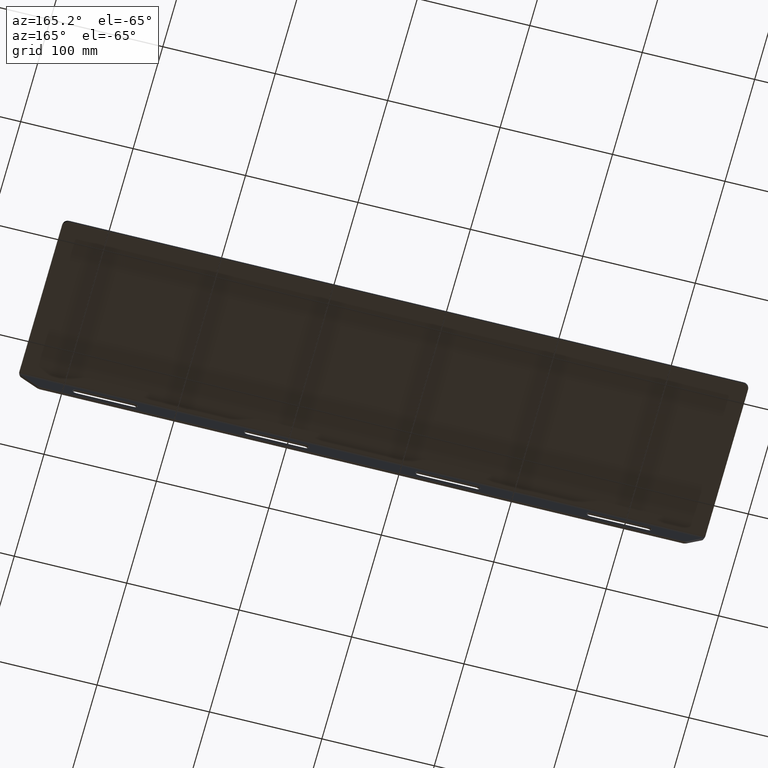
[diagram: clean part render]
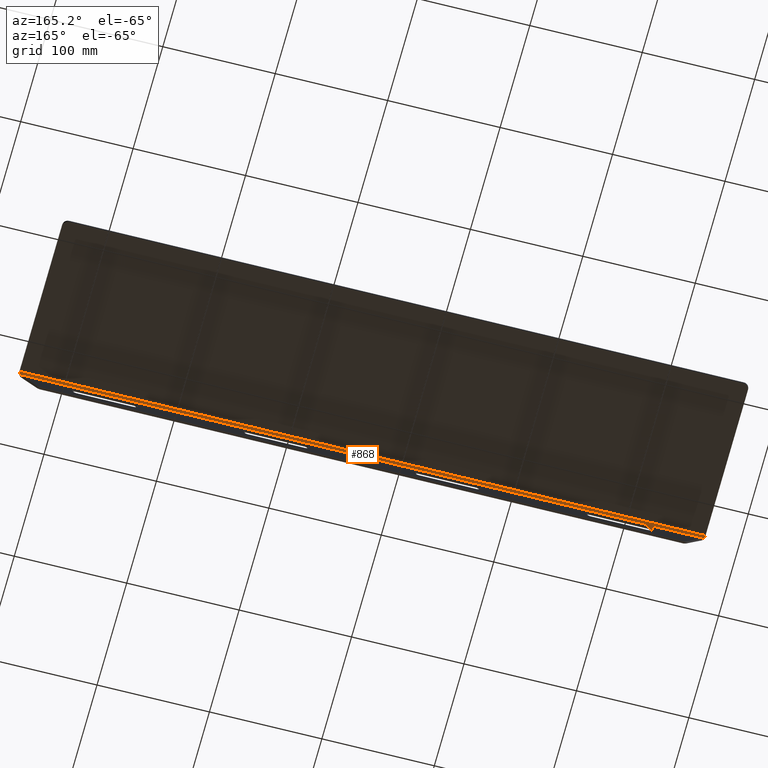
[diagram: same view with one face highlighted and labeled with its STEP entity id]
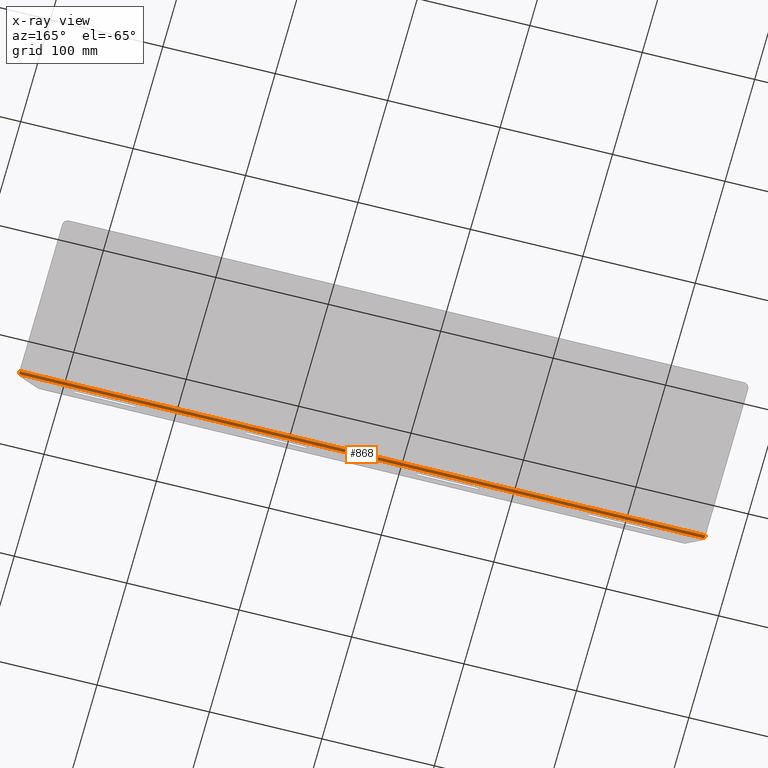
[diagram: x-ray of the same camera — body ghosted, the highlighted face saturated]
A machine part, auxiliary view. The second image highlights one B-rep face of the part: STEP entity #868.
The next image is the same camera in x-ray: the body ghosted, the highlighted face saturated — about 0% of this face is hidden behind the body in this view.
In plain terms, the highlighted cylindrical surface (edge-blend (fillet) strip) has radius 2 mm, axis along (-1, -0, -0).
Its self-contained STEP definition (entity closure, byte-faithful):
#5 = CARTESIAN_POINT ( 'NONE',  ( 536.2322529049940840, 256.5515681561289512, 463.7885414015825631 ) ) ;
#14 = DIRECTION ( 'NONE',  ( 0.000000000000000000, 0.000000000000000000, 1.000000000000000000 ) ) ;
#85 = CARTESIAN_POINT ( 'NONE',  ( -72.16848662146929883, 256.5515681561303722, 463.7885414015803462 ) ) ;
#88 = VERTEX_POINT ( 'NONE', #719 ) ;
#97 = VERTEX_POINT ( 'NONE', #181 ) ;
#174 = CARTESIAN_POINT ( 'NONE',  ( -71.75880394125977091, 256.4371249447057721, 463.3530726471923344 ) ) ;
#181 = CARTESIAN_POINT ( 'NONE',  ( -72.96811685823823268, 258.4215033607173382, 465.0621721913454962 ) ) ;
#207 = AXIS2_PLACEMENT_3D ( 'NONE', #675, #1116, #14 ) ;
#214 = CARTESIAN_POINT ( 'NONE',  ( 536.9423599722209701, 257.1171185445418246, 464.5895320211569128 ) ) ;
#221 = CARTESIAN_POINT ( 'NONE',  ( 535.5389899229481898, 256.4215033607171108, 463.0621721913454962 ) ) ;
#236 = CARTESIAN_POINT ( 'NONE',  ( 535.8225702247837035, 256.4371249447115133, 463.3530726471913113 ) ) ;
#248 = VERTEX_POINT ( 'NONE', #1371 ) ;
#280 = CARTESIAN_POINT ( 'NONE',  ( 536.8318831417617503, 256.4215033607171108, 463.0621721913454962 ) ) ;
#290 = DIRECTION ( 'NONE',  ( -1.000000000000000000, -0.000000000000000000, -0.000000000000000000 ) ) ;
#320 = CARTESIAN_POINT ( 'NONE',  ( 535.5389899229481898, 256.4215033607171108, 463.0621721913454962 ) ) ;
#326 = VECTOR ( 'NONE', #551, 1000.000000000000000 ) ;
#401 = CARTESIAN_POINT ( 'NONE',  ( -72.77583609990550428, 256.9900315775633430, 464.4691537418731286 ) ) ;
#412 = FACE_OUTER_BOUND ( 'NONE', #568, .T. ) ;
#421 = EDGE_CURVE ( 'NONE', #97, #88, #1178, .T. ) ;
#435 = ORIENTED_EDGE ( 'NONE', *, *, #441, .F. ) ;
#441 = EDGE_CURVE ( 'NONE', #88, #248, #732, .T. ) ;
#463 = ORIENTED_EDGE ( 'NONE', *, *, #1405, .F. ) ;
#488 = CARTESIAN_POINT ( 'NONE',  ( 537.0318831417617957, 258.4215033607173382, 465.0621721913454962 ) ) ;
#499 = CYLINDRICAL_SURFACE ( 'NONE', #853, 2.000000000000001776 ) ;
#500 = EDGE_CURVE ( 'NONE', #540, #248, #967, .T. ) ;
#528 = VECTOR ( 'NONE', #1046, 1000.000000000000000 ) ;
#540 = VERTEX_POINT ( 'NONE', #221 ) ;
#543 = EDGE_CURVE ( 'NONE', #990, #97, #1321, .T. ) ;
#551 = DIRECTION ( 'NONE',  ( -1.000000000000000000, -0.000000000000000000, -0.000000000000000000 ) ) ;
#568 = EDGE_LOOP ( 'NONE', ( #463, #1000, #1204, #435, #1238, #791 ) ) ;
#618 = CARTESIAN_POINT ( 'NONE',  ( -72.03530189151584295, 256.5024845111897207, 463.6450507621490829 ) ) ;
#632 = CARTESIAN_POINT ( 'NONE',  ( -72.42409761493141218, 256.6866000247371176, 464.0693366832412039 ) ) ;
#650 = CARTESIAN_POINT ( 'NONE',  ( 537.0318831417617957, 257.2683198756854495, 464.6962370155951589 ) ) ;
#661 = B_SPLINE_CURVE_WITH_KNOTS ( 'NONE', 3,
 ( #320, #1206, #236, #775, #5, #875, #1424, #976, #214, #650 ),
 .UNSPECIFIED., .F., .F.,
 ( 4, 2, 2, 2, 4 ),
 ( 0.002707343783151554099, 0.003316986837394173600, 0.003926629891636793102, 0.004536272945879412169, 0.005145916000122032104 ),
 .UNSPECIFIED. ) ;
#675 = CARTESIAN_POINT ( 'NONE',  ( 537.0318831417617957, 258.4215033607171108, 463.0621721913454962 ) ) ;
#717 = DIRECTION ( 'NONE',  ( 0.000000000000000000, 0.000000000000000000, 1.000000000000000000 ) ) ;
#718 = DIRECTION ( 'NONE',  ( 1.000000000000000000, 0.000000000000000000, 0.000000000000000000 ) ) ;
#719 = CARTESIAN_POINT ( 'NONE',  ( -72.96811685823823268, 257.2683198756833463, 464.6962370155936810 ) ) ;
#732 = B_SPLINE_CURVE_WITH_KNOTS ( 'NONE', 3,
 ( #941, #1270, #401, #837, #632, #85, #618, #174, #1396, #1391 ),
 .UNSPECIFIED., .F., .F.,
 ( 4, 2, 2, 2, 4 ),
 ( 0.003757591167810760309, 0.004371564375194680538, 0.004985537582578601634, 0.005599510789962522730, 0.006213483997346442959 ),
 .UNSPECIFIED. ) ;
#739 = AXIS2_PLACEMENT_3D ( 'NONE', #1173, #718, #947 ) ;
#775 = CARTESIAN_POINT ( 'NONE',  ( 536.0990681750402018, 256.5024845111954050, 463.6450507621478891 ) ) ;
#791 = ORIENTED_EDGE ( 'NONE', *, *, #543, .F. ) ;
#815 = VERTEX_POINT ( 'NONE', #908 ) ;
#827 = CIRCLE ( 'NONE', #207, 2.000000000000001776 ) ;
#837 = CARTESIAN_POINT ( 'NONE',  ( -72.54793900168859011, 256.7737383924647361, 464.2082870018643916 ) ) ;
#853 = AXIS2_PLACEMENT_3D ( 'NONE', #1388, #290, #717 ) ;
#866 = CARTESIAN_POINT ( 'NONE',  ( 536.8318831417617503, 258.4215033607171108, 465.0621721913454962 ) ) ;
#868 = ADVANCED_FACE ( 'NONE', ( #412 ), #499, .F. ) ;
#875 = CARTESIAN_POINT ( 'NONE',  ( 536.4878638984561121, 256.6866000247360375, 464.0693366832435913 ) ) ;
#908 = CARTESIAN_POINT ( 'NONE',  ( 537.0318831417617957, 257.2683198756854495, 464.6962370155951589 ) ) ;
#941 = CARTESIAN_POINT ( 'NONE',  ( -72.96811685823823268, 257.2683198756833463, 464.6962370155936810 ) ) ;
#947 = DIRECTION ( 'NONE',  ( 0.000000000000000000, 0.000000000000000000, -1.000000000000000000 ) ) ;
#967 = LINE ( 'NONE', #280, #528 ) ;
#976 = CARTESIAN_POINT ( 'NONE',  ( 536.8396023834300195, 256.9900315775649915, 464.4691537418737539 ) ) ;
#990 = VERTEX_POINT ( 'NONE', #488 ) ;
#1000 = ORIENTED_EDGE ( 'NONE', *, *, #1316, .F. ) ;
#1046 = DIRECTION ( 'NONE',  ( -1.000000000000000000, -0.000000000000000000, -0.000000000000000000 ) ) ;
#1116 = DIRECTION ( 'NONE',  ( -1.000000000000000000, -0.000000000000000000, -0.000000000000000000 ) ) ;
#1173 = CARTESIAN_POINT ( 'NONE',  ( -72.96811685823823268, 258.4215033607171108, 463.0621721913454962 ) ) ;
#1178 = CIRCLE ( 'NONE', #739, 2.000000000000001776 ) ;
#1204 = ORIENTED_EDGE ( 'NONE', *, *, #500, .T. ) ;
#1206 = CARTESIAN_POINT ( 'NONE',  ( 535.6807902111094108, 256.4215033607197256, 463.2062414281859901 ) ) ;
#1238 = ORIENTED_EDGE ( 'NONE', *, *, #421, .F. ) ;
#1270 = CARTESIAN_POINT ( 'NONE',  ( -72.87859368869651178, 257.1171185445412561, 464.5895320211540138 ) ) ;
#1316 = EDGE_CURVE ( 'NONE', #540, #815, #661, .T. ) ;
#1321 = LINE ( 'NONE', #866, #326 ) ;
#1371 = CARTESIAN_POINT ( 'NONE',  ( -71.47522363942412937, 256.4215033607169403, 463.0621721913447573 ) ) ;
#1388 = CARTESIAN_POINT ( 'NONE',  ( 536.8318831417617503, 258.4215033607171108, 463.0621721913454962 ) ) ;
#1391 = CARTESIAN_POINT ( 'NONE',  ( -71.47522363942412937, 256.4215033607169403, 463.0621721913447573 ) ) ;
#1396 = CARTESIAN_POINT ( 'NONE',  ( -71.61702392758509461, 256.4215033607168834, 463.2062414281855922 ) ) ;
#1405 = EDGE_CURVE ( 'NONE', #815, #990, #827, .T. ) ;
#1424 = CARTESIAN_POINT ( 'NONE',  ( 536.6117052852129063, 256.7737383924660435, 464.2082870018651306 ) ) ;